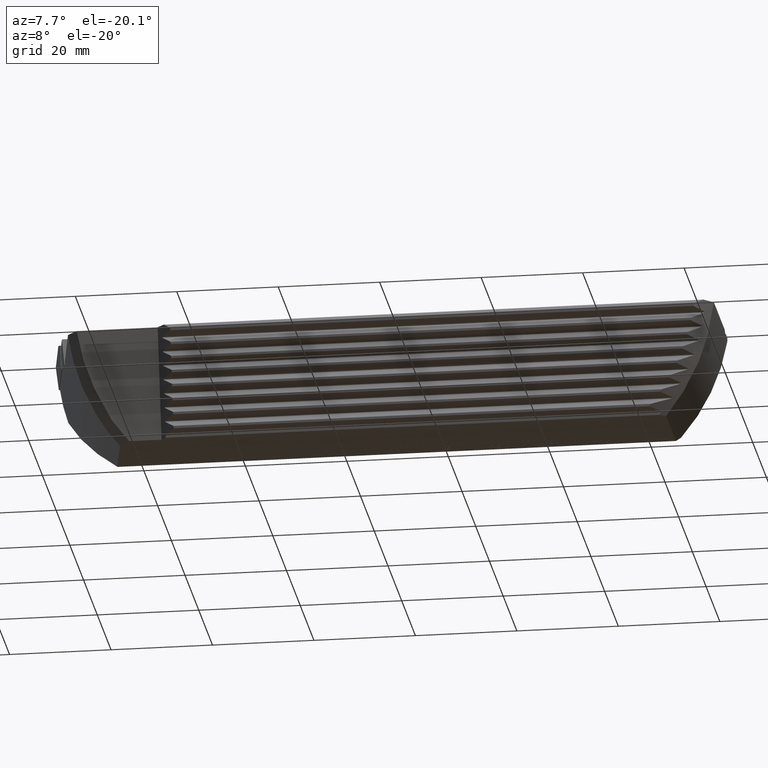
[diagram: clean part render]
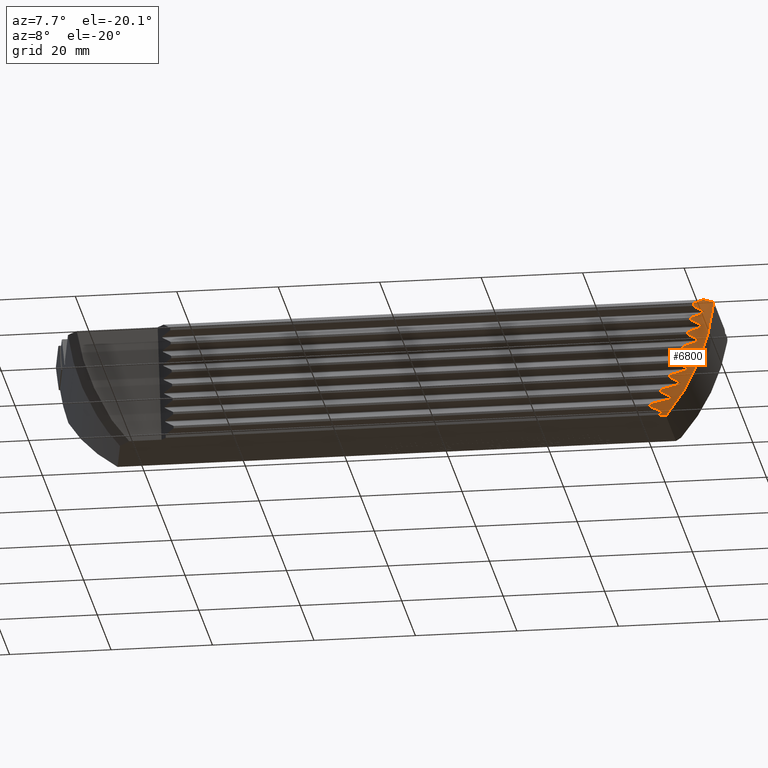
[diagram: same view with one face highlighted and labeled with its STEP entity id]
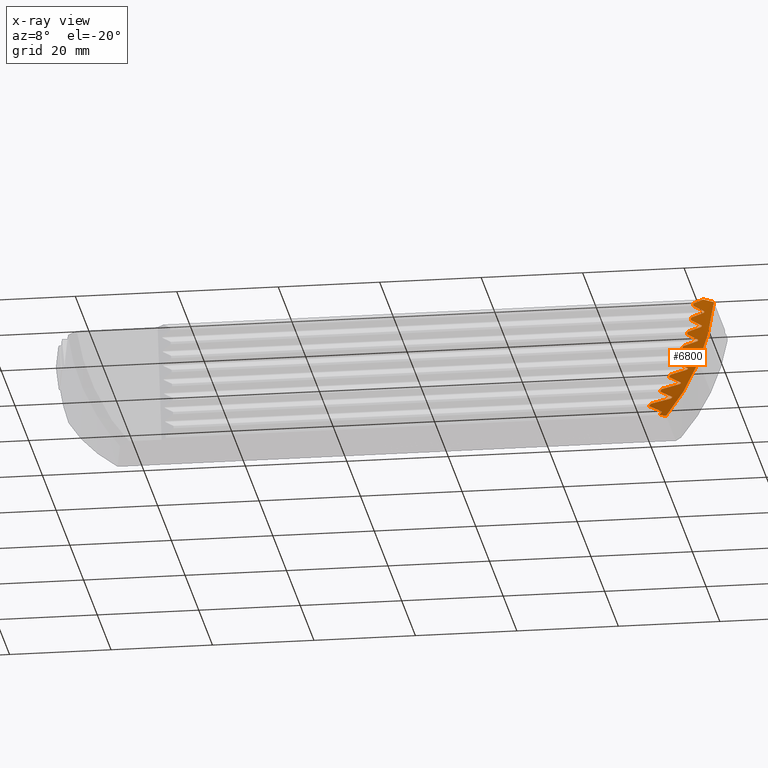
[diagram: x-ray of the same camera — body ghosted, the highlighted face saturated]
A machine part, auxiliary view. The second image highlights one B-rep face of the part: STEP entity #6800.
The next image is the same camera in x-ray: the body ghosted, the highlighted face saturated — about 0% of this face is hidden behind the body in this view.
In plain terms, the highlighted face is a freeform B-spline surface patch.
Its self-contained STEP definition (entity closure, byte-faithful):
#64 = CARTESIAN_POINT ( 'NONE',  ( 134.5845613844589600, -36.52633063262372600, -6.050000000000010500 ) ) ;
#85 = CARTESIAN_POINT ( 'NONE',  ( 123.7181557038277200, -32.36997885332834800, -26.75994528499704800 ) ) ;
#132 = CARTESIAN_POINT ( 'NONE',  ( 127.3528536518764000, -36.51400017045077100, -17.97214598813745900 ) ) ;
#153 = EDGE_CURVE ( 'NONE', #21198, #6716, #3176, .T. ) ;
#155 = CARTESIAN_POINT ( 'NONE',  ( 123.7083755843121900, -32.28194577921618000, -26.86967759691581400 ) ) ;
#201 = CARTESIAN_POINT ( 'NONE',  ( 130.4162673967142600, -36.91850911566623900, -13.20584658425452500 ) ) ;
#294 = VERTEX_POINT ( 'NONE', #5125 ) ;
#400 = B_SPLINE_CURVE_WITH_KNOTS ( 'NONE', 3,
 ( #8970, #18232, #10865, #24003, #12766, #1484, #14637 ),
 .UNSPECIFIED., .F., .F.,
 ( 4, 3, 4 ),
 ( 1.473698388019210200E-016, 0.001539430080052739700, 0.003079073643013428000 ),
 .UNSPECIFIED. ) ;
#516 = B_SPLINE_CURVE_WITH_KNOTS ( 'NONE', 3,
 ( #3006, #1136, #4908, #18048 ),
 .UNSPECIFIED., .F., .F.,
 ( 4, 4 ),
 ( 3.469446951953613800E-018, 0.0004713514177080084900 ),
 .UNSPECIFIED. ) ;
#669 = B_SPLINE_CURVE_WITH_KNOTS ( 'NONE', 3,
 ( #21458, #8318, #12117, #798, #13963, #2695, #15852, #4573, #17726, #6497 ),
 .UNSPECIFIED., .F., .F.,
 ( 4, 2, 2, 2, 4 ),
 ( 7.713182202459434400E-017, 0.0001286294055789615300, 0.0002572588111578459300, 0.0003858882167367303200, 0.0005145176223156146600 ),
 .UNSPECIFIED. ) ;
#798 = CARTESIAN_POINT ( 'NONE',  ( 131.4193370046849100, -35.85910563653977300, -13.54048896190810300 ) ) ;
#802 = ORIENTED_EDGE ( 'NONE', *, *, #14669, .T. ) ;
#973 = CARTESIAN_POINT ( 'NONE',  ( 127.6053454959335800, -33.84399299875708800, -21.42640834028320300 ) ) ;
#1115 = CARTESIAN_POINT ( 'NONE',  ( 127.4286870122205600, -36.55363693846737000, -17.82421955605167700 ) ) ;
#1126 = CARTESIAN_POINT ( 'NONE',  ( 127.6698540386168300, -33.77373074541698400, -21.45419453336743800 ) ) ;
#1136 = CARTESIAN_POINT ( 'NONE',  ( 130.3726356075839600, -38.64932962645990200, -10.00298796741317500 ) ) ;
#1165 = CARTESIAN_POINT ( 'NONE',  ( 128.4725434452416300, -37.14687104255191500, -15.61023973882562500 ) ) ;
#1183 = CARTESIAN_POINT ( 'NONE',  ( 127.3972567605948300, -33.75433545154027100, -21.76101486177834200 ) ) ;
#1204 = B_SPLINE_CURVE_WITH_KNOTS ( 'NONE', 3,
 ( #15381, #5916, #7896, #21032, #9783, #22930, #11683 ),
 .UNSPECIFIED., .F., .F.,
 ( 4, 3, 4 ),
 ( 0.0000000000000000000, 0.001251856041963073800, 0.002824493595006482000 ),
 .UNSPECIFIED. ) ;
#1234 = CARTESIAN_POINT ( 'NONE',  ( 123.5585613317595200, -32.23681908278501100, -27.03809272077465000 ) ) ;
#1343 = VERTEX_POINT ( 'NONE', #14343 ) ;
#1374 = EDGE_CURVE ( 'NONE', #1994, #6765, #2128, .T. ) ;
#1399 = CARTESIAN_POINT ( 'NONE',  ( 123.2738797807059700, -32.15321922793429400, -27.35006530447994100 ) ) ;
#1413 = CARTESIAN_POINT ( 'NONE',  ( 130.3272320349981600, -35.12254174553696400, -16.35342474522967700 ) ) ;
#1417 = CARTESIAN_POINT ( 'NONE',  ( 128.6600270858250500, -37.26538931249933000, -15.16792353375673700 ) ) ;
#1452 = CARTESIAN_POINT ( 'NONE',  ( 132.7790819290612800, -37.25049742895151200, -8.338536578598743500 ) ) ;
#1484 = CARTESIAN_POINT ( 'NONE',  ( 130.0489563370474300, -37.75122944670067700, -12.28571527163119700 ) ) ;
#1578 = CARTESIAN_POINT ( 'NONE',  ( 125.8339794678011700, -33.11554116961394800, -24.08717896808923000 ) ) ;
#1615 = CARTESIAN_POINT ( 'NONE',  ( 134.2525220027648300, -35.97098713624138400, -8.335868042271283000 ) ) ;
#1617 = CARTESIAN_POINT ( 'NONE',  ( 123.2568247514634100, -32.78034763106064300, -26.64257635451485800 ) ) ;
#1667 = CARTESIAN_POINT ( 'NONE',  ( 125.8315476560978300, -32.98465336472146700, -24.25253803907591200 ) ) ;
#1685 = CARTESIAN_POINT ( 'NONE',  ( 132.1547202145120500, -36.54452231941313300, -11.03502958161826800 ) ) ;
#1704 = CARTESIAN_POINT ( 'NONE',  ( 131.1507457895796400, -33.76600261725589300, -17.42086098744378500 ) ) ;
#1855 = CARTESIAN_POINT ( 'NONE',  ( 131.5127975775552300, -37.31698046747462200, -10.63349395886837500 ) ) ;
#1858 = CARTESIAN_POINT ( 'NONE',  ( 130.0222610951811400, -35.58054831313528200, -16.02993464925929600 ) ) ;
#1963 = CARTESIAN_POINT ( 'NONE',  ( 123.7303773359907100, -32.34929166453034800, -26.77444924734566500 ) ) ;
#1994 = VERTEX_POINT ( 'NONE', #13843 ) ;
#2105 = CARTESIAN_POINT ( 'NONE',  ( 131.0282745949526500, -36.29220131511037600, -13.37366525362675600 ) ) ;
#2128 = B_SPLINE_CURVE_WITH_KNOTS ( 'NONE', 3,
 ( #13137, #14104, #13229, #12487 ),
 .UNSPECIFIED., .F., .F.,
 ( 4, 4 ),
 ( 0.0000000000000000000, 0.0005364988236323490100 ),
 .UNSPECIFIED. ) ;
#2182 = CARTESIAN_POINT ( 'NONE',  ( 127.4286870122205600, -36.55363693846737000, -17.82421955605167700 ) ) ;
#2199 = EDGE_CURVE ( 'NONE', #14117, #7551, #18475, .T. ) ;
#2288 = B_SPLINE_CURVE_WITH_KNOTS ( 'NONE', 3,
 ( #18018, #4973, #20027, #8766 ),
 .UNSPECIFIED., .F., .F.,
 ( 4, 4 ),
 ( 2.943923360032078000E-017, 0.003575567828514641900 ),
 .UNSPECIFIED. ) ;
#2333 = CARTESIAN_POINT ( 'NONE',  ( 123.8821682403357900, -35.05089729063077200, -23.43252027232594900 ) ) ;
#2558 = B_SPLINE_CURVE_WITH_KNOTS ( 'NONE', 3,
 ( #10554, #8918, #12715, #1417 ),
 .UNSPECIFIED., .F., .F.,
 ( 4, 4 ),
 ( 4.580327021671401200E-016, 0.003215846030035622900 ),
 .UNSPECIFIED. ) ;
#2562 = ORIENTED_EDGE ( 'NONE', *, *, #153, .T. ) ;
#2591 = ORIENTED_EDGE ( 'NONE', *, *, #23472, .T. ) ;
#2669 = VERTEX_POINT ( 'NONE', #22781 ) ;
#2695 = CARTESIAN_POINT ( 'NONE',  ( 131.3778215257751500, -35.82745752762043200, -13.66090583954710700 ) ) ;
#2707 = B_SPLINE_CURVE_WITH_KNOTS ( 'NONE', 3,
 ( #18518, #1578, #20416, #9177, #22313, #11046, #24211, #12957, #1667, #14833, #3574, #16719, #5453, #18604 ),
 .UNSPECIFIED., .F., .F.,
 ( 4, 2, 2, 2, 2, 2, 4 ),
 ( 0.0000000000000000000, 7.451216942838094600E-005, 0.0001490243388567618900, 0.0002235365082851428300, 0.0002980486777135237900, 0.0004470730165702780600, 0.0005960973554270323900 ),
 .UNSPECIFIED. ) ;
#2913 = B_SPLINE_CURVE_WITH_KNOTS ( 'NONE', 3,
 ( #22504, #9354, #11255, #24398, #13142, #1858, #15039 ),
 .UNSPECIFIED., .F., .F.,
 ( 4, 3, 4 ),
 ( 0.0000000000000000000, 0.001345811380157438200, 0.002691623273841657400 ),
 .UNSPECIFIED. ) ;
#3001 = CARTESIAN_POINT ( 'NONE',  ( 127.6723657281773400, -33.71575278833810100, -21.52976358009700400 ) ) ;
#3006 = CARTESIAN_POINT ( 'NONE',  ( 130.4089400897823300, -38.68889406056322100, -9.855331489166868400 ) ) ;
#3012 = CARTESIAN_POINT ( 'NONE',  ( 131.1583596961542900, -38.23442250747633900, -9.400859936079967800 ) ) ;
#3020 = B_SPLINE_CURVE_WITH_KNOTS ( 'NONE', 3,
 ( #20596, #7450, #11235, #24370 ),
 .UNSPECIFIED., .F., .F.,
 ( 4, 4 ),
 ( 0.0000000000000000000, 0.2640935629766421600 ),
 .UNSPECIFIED. ) ;
#3043 = CARTESIAN_POINT ( 'NONE',  ( 131.5304897890244400, -38.00508252320455700, -9.171519951808189600 ) ) ;
#3097 = CARTESIAN_POINT ( 'NONE',  ( 131.9025799896393800, -37.77576712412316300, -8.942204552726792600 ) ) ;
#3176 = B_SPLINE_CURVE_WITH_KNOTS ( 'NONE', 3,
 ( #16964, #16546, #7367, #17046, #17129, #18076, #18415 ),
 .UNSPECIFIED., .F., .F.,
 ( 4, 3, 4 ),
 ( 7.757919228897728500E-018, 0.001359683258879645100, 0.002719366518071261200 ),
 .UNSPECIFIED. ) ;
#3194 = EDGE_CURVE ( 'NONE', #3784, #7715, #5415, .T. ) ;
#3196 = ORIENTED_EDGE ( 'NONE', *, *, #17092, .T. ) ;
#3226 = CARTESIAN_POINT ( 'NONE',  ( 121.6304243306541900, -34.33906518055502500, -26.08911387358756100 ) ) ;
#3248 = B_SPLINE_CURVE_WITH_KNOTS ( 'NONE', 3,
 ( #20705, #9464, #11338, #64 ),
 .UNSPECIFIED., .F., .F.,
 ( 4, 4 ),
 ( 0.4884491327493285000, 1.000000000000000000 ),
 .UNSPECIFIED. ) ;
#3256 = CARTESIAN_POINT ( 'NONE',  ( 121.4920538187345200, -34.29986154642412500, -26.23542382800538100 ) ) ;
#3272 = CARTESIAN_POINT ( 'NONE',  ( 132.2729819526199200, -37.54507555559165200, -8.711512984195300300 ) ) ;
#3289 = CARTESIAN_POINT ( 'NONE',  ( 130.2259608627024900, -35.15943296180119400, -16.43001557939325300 ) ) ;
#3327 = CARTESIAN_POINT ( 'NONE',  ( 132.7030228285475200, -37.27695913132740200, -8.435501746203256000 ) ) ;
#3471 = ORIENTED_EDGE ( 'NONE', *, *, #8841, .T. ) ;
#3548 = CARTESIAN_POINT ( 'NONE',  ( 130.3324364190695200, -35.26749774682097200, -16.11381629569332900 ) ) ;
#3574 = CARTESIAN_POINT ( 'NONE',  ( 125.7360535873885700, -32.99008734926875500, -24.33146043989424700 ) ) ;
#3575 = CARTESIAN_POINT ( 'NONE',  ( 129.1590176308338300, -34.48838001099943500, -18.79654616835302100 ) ) ;
#3591 = CARTESIAN_POINT ( 'NONE',  ( 132.0661798740925400, -36.58215686719366000, -11.11664269212500300 ) ) ;
#3606 = CARTESIAN_POINT ( 'NONE',  ( 131.1366773127857100, -33.75880117327566400, -17.45052756896337700 ) ) ;
#3746 = ORIENTED_EDGE ( 'NONE', *, *, #5255, .F. ) ;
#3753 = CARTESIAN_POINT ( 'NONE',  ( 132.1213834201097700, -36.69100249488487700, -10.80122425110345600 ) ) ;
#3784 = VERTEX_POINT ( 'NONE', #19565 ) ;
#3877 = CARTESIAN_POINT ( 'NONE',  ( 123.7369102801178100, -32.33329449019521500, -26.78793691787083700 ) ) ;
#4132 = CARTESIAN_POINT ( 'NONE',  ( 134.5845613844589600, -36.52633063262372600, -6.050000000000010500 ) ) ;
#4133 = B_SPLINE_CURVE_WITH_KNOTS ( 'NONE', 3,
 ( #2182, #132, #17217, #5972 ),
 .UNSPECIFIED., .F., .F.,
 ( 4, 4 ),
 ( 3.469446951953614200E-018, 0.0005126753466529232500 ),
 .UNSPECIFIED. ) ;
#4333 = VERTEX_POINT ( 'NONE', #11695 ) ;
#4380 = ORIENTED_EDGE ( 'NONE', *, *, #12841, .T. ) ;
#4573 = CARTESIAN_POINT ( 'NONE',  ( 131.2878218207022800, -35.85497715087409900, -13.75025260886267900 ) ) ;
#4583 = CARTESIAN_POINT ( 'NONE',  ( 134.0113580357771100, -34.64368186642994400, -13.80400648461926500 ) ) ;
#4726 = CARTESIAN_POINT ( 'NONE',  ( 129.4989749493311700, -37.85862341658386000, -12.95394371653068600 ) ) ;
#4766 = EDGE_CURVE ( 'NONE', #10516, #16735, #23573, .T. ) ;
#4893 = CARTESIAN_POINT ( 'NONE',  ( 127.6386059694877600, -33.69720536862587300, -21.58967199274684000 ) ) ;
#4900 = CARTESIAN_POINT ( 'NONE',  ( 131.4874110577771400, -38.65520709743596200, -7.809334665618260700 ) ) ;
#4908 = CARTESIAN_POINT ( 'NONE',  ( 130.3353927071153700, -38.60982209163624600, -10.15043209465689200 ) ) ;
#4973 = CARTESIAN_POINT ( 'NONE',  ( 127.9361201697033700, -34.93678105643315500, -19.57541207034434500 ) ) ;
#5042 = CARTESIAN_POINT ( 'NONE',  ( 132.6417561652575000, -37.31309732170002000, -8.479534750303646000 ) ) ;
#5109 = CARTESIAN_POINT ( 'NONE',  ( 130.3631638341086600, -35.23648549684961000, -16.12212600302863700 ) ) ;
#5125 = CARTESIAN_POINT ( 'NONE',  ( 123.2738797807059700, -32.15321922793429400, -27.35006530447994100 ) ) ;
#5209 = VERTEX_POINT ( 'NONE', #24075 ) ;
#5240 = CARTESIAN_POINT ( 'NONE',  ( 132.6417561652575000, -37.31309732170002000, -8.479534750303646000 ) ) ;
#5255 = EDGE_CURVE ( 'NONE', #21095, #6110, #8299, .T. ) ;
#5409 = CARTESIAN_POINT ( 'NONE',  ( 132.8456802418753900, -34.76998859690263500, -13.28842482466799000 ) ) ;
#5415 = B_SPLINE_CURVE_WITH_KNOTS ( 'NONE', 3,
 ( #5042, #3272, #3097, #3043, #3012, #7173, #7144 ),
 .UNSPECIFIED., .F., .F.,
 ( 4, 3, 4 ),
 ( 6.798699777552591100E-017, 0.001480743055748873000, 0.002961646335701721700 ),
 .UNSPECIFIED. ) ;
#5453 = CARTESIAN_POINT ( 'NONE',  ( 125.6100257709682800, -33.02539162929507900, -24.40011943586001300 ) ) ;
#5455 = CARTESIAN_POINT ( 'NONE',  ( 129.1707926182478200, -34.43097589268052200, -18.86678301269310200 ) ) ;
#5485 = CARTESIAN_POINT ( 'NONE',  ( 130.2063866821417000, -33.28339940813801000, -19.40902259457481100 ) ) ;
#5507 = ORIENTED_EDGE ( 'NONE', *, *, #16611, .T. ) ;
#5529 = ORIENTED_EDGE ( 'NONE', *, *, #2199, .T. ) ;
#5565 = CARTESIAN_POINT ( 'NONE',  ( 130.6008788509413700, -38.25681588863477600, -10.38166581675034400 ) ) ;
#5599 = VERTEX_POINT ( 'NONE', #12400 ) ;
#5609 = EDGE_CURVE ( 'NONE', #13286, #2669, #9125, .T. ) ;
#5682 = CARTESIAN_POINT ( 'NONE',  ( 123.6843885526913300, -32.40771354742189900, -26.74242335629817200 ) ) ;
#5704 = CARTESIAN_POINT ( 'NONE',  ( 132.2435396070933400, -38.56180046460727300, -6.360189496884001600 ) ) ;
#5752 = CARTESIAN_POINT ( 'NONE',  ( 123.7385720074433800, -32.31852985006233300, -26.80378321826638600 ) ) ;
#5768 = B_SPLINE_CURVE_WITH_KNOTS ( 'NONE', 3,
 ( #11048, #12958, #3575, #16721, #5455, #18605, #7368, #20490, #9249, #22399, #11145, #24278 ),
 .UNSPECIFIED., .F., .F.,
 ( 4, 2, 2, 2, 2, 4 ),
 ( 7.757919228897728500E-018, 0.0001363555606667038200, 0.0002045333410000468500, 0.0002727111213333898700, 0.0004090666820001152100, 0.0005454222426668406700 ),
 .UNSPECIFIED. ) ;
#5769 = CARTESIAN_POINT ( 'NONE',  ( 123.6988180938983200, -32.27906689445589400, -26.88042174111040300 ) ) ;
#5798 = CARTESIAN_POINT ( 'NONE',  ( 129.4989749493311700, -37.85862341658386000, -12.95394371653068600 ) ) ;
#5916 = CARTESIAN_POINT ( 'NONE',  ( 124.0716674117306700, -34.73474027152623500, -23.65331587634664200 ) ) ;
#5950 = CARTESIAN_POINT ( 'NONE',  ( 124.1062099379362000, -35.13013219040348600, -23.13681160064154700 ) ) ;
#5954 = CARTESIAN_POINT ( 'NONE',  ( 129.5493671119850500, -37.89804939556220400, -12.80680395984532400 ) ) ;
#5972 = CARTESIAN_POINT ( 'NONE',  ( 127.1981532717663400, -36.43511866851996900, -18.26653576112056100 ) ) ;
#5973 = CARTESIAN_POINT ( 'NONE',  ( 130.4089400897823300, -38.68889406056322100, -9.855331489166868400 ) ) ;
#6110 = VERTEX_POINT ( 'NONE', #23907 ) ;
#6364 = EDGE_CURVE ( 'NONE', #10822, #21095, #3248, .T. ) ;
#6497 = CARTESIAN_POINT ( 'NONE',  ( 131.2204077600326600, -35.88959257363612200, -13.79212679489352700 ) ) ;
#6505 = CARTESIAN_POINT ( 'NONE',  ( 121.6680779998381800, -30.68391424771867200, -30.11297730510233700 ) ) ;
#6716 = VERTEX_POINT ( 'NONE', #16722 ) ;
#6765 = VERTEX_POINT ( 'NONE', #20492 ) ;
#6800 = ADVANCED_FACE ( 'NONE', ( #24162 ), #10847, .T. ) ;
#6815 = CARTESIAN_POINT ( 'NONE',  ( 127.5536540390315400, -33.70090553070743800, -21.67229033142853100 ) ) ;
#6817 = CARTESIAN_POINT ( 'NONE',  ( 132.0955568688864900, -38.02875636192381800, -7.977191634296614700 ) ) ;
#6961 = EDGE_CURVE ( 'NONE', #17890, #4333, #400, .T. ) ;
#7074 = VERTEX_POINT ( 'NONE', #3548 ) ;
#7144 = CARTESIAN_POINT ( 'NONE',  ( 130.4089400897823300, -38.68889406056322100, -9.855331489166868400 ) ) ;
#7173 = CARTESIAN_POINT ( 'NONE',  ( 130.7845308418541200, -38.46239235002974500, -9.628829778633367200 ) ) ;
#7234 = CARTESIAN_POINT ( 'NONE',  ( 121.8046868231203300, -34.03289466957645700, -26.30695738706256700 ) ) ;
#7314 = CARTESIAN_POINT ( 'NONE',  ( 132.0140299999744100, -34.23958940215251800, -15.47143734519598400 ) ) ;
#7367 = CARTESIAN_POINT ( 'NONE',  ( 127.8314344184575900, -35.80866786782064500, -18.43439274726576500 ) ) ;
#7368 = CARTESIAN_POINT ( 'NONE',  ( 129.1457565977063400, -34.40994385717333900, -18.92718251963152200 ) ) ;
#7407 = CARTESIAN_POINT ( 'NONE',  ( 126.9096958100353000, -32.04625707280921900, -24.50227531424166500 ) ) ;
#7450 = CARTESIAN_POINT ( 'NONE',  ( 124.0686079176942100, -31.62754228815064300, -27.35000000000000900 ) ) ;
#7551 = VERTEX_POINT ( 'NONE', #1115 ) ;
#7589 = CARTESIAN_POINT ( 'NONE',  ( 123.6697307397589000, -32.42048825069318200, -26.73900038487309100 ) ) ;
#7590 = VERTEX_POINT ( 'NONE', #12806 ) ;
#7625 = CARTESIAN_POINT ( 'NONE',  ( 131.6593490953067100, -38.94546592997095000, -6.743854962247682200 ) ) ;
#7656 = CARTESIAN_POINT ( 'NONE',  ( 125.5667247526050800, -33.04258307750831800, -24.41731088407328400 ) ) ;
#7684 = CARTESIAN_POINT ( 'NONE',  ( 123.7350163188846200, -32.30576077030588100, -26.82136745344878300 ) ) ;
#7715 = VERTEX_POINT ( 'NONE', #5973 ) ;
#7832 = B_SPLINE_CURVE_WITH_KNOTS ( 'NONE', 3,
 ( #20432, #12890, #22337, #11064, #24225, #12979, #1685, #14853, #3591, #16743 ),
 .UNSPECIFIED., .F., .F.,
 ( 4, 2, 2, 2, 4 ),
 ( 0.0000000000000000000, 0.0001259252439738793100, 0.0002518504879477586100, 0.0003777757319216378900, 0.0005037009758955172200 ),
 .UNSPECIFIED. ) ;
#7864 = EDGE_CURVE ( 'NONE', #18343, #19659, #18664, .T. ) ;
#7891 = ORIENTED_EDGE ( 'NONE', *, *, #21197, .T. ) ;
#7896 = CARTESIAN_POINT ( 'NONE',  ( 124.3745601293145700, -34.45749503552963200, -23.72760351343730900 ) ) ;
#7953 = B_SPLINE_CURVE_WITH_KNOTS ( 'NONE', 3,
 ( #23766, #1234, #12694, #1399 ),
 .UNSPECIFIED., .F., .F.,
 ( 4, 4 ),
 ( 0.0000000000000000000, 0.0006456413653912300400 ),
 .UNSPECIFIED. ) ;
#7957 = CARTESIAN_POINT ( 'NONE',  ( 123.9947725460212500, -35.09040598329722400, -23.28507182395406600 ) ) ;
#8182 = ORIENTED_EDGE ( 'NONE', *, *, #15304, .T. ) ;
#8299 = B_SPLINE_CURVE_WITH_KNOTS ( 'NONE', 3,
 ( #16664, #1615, #11006, #5409, #18560, #7314, #20446, #9210, #22352, #11082, #24240, #13000, #1704, #14866, #3606, #16763, #5485, #18640, #7407, #20538, #9284 ),
 .UNSPECIFIED., .F., .F.,
 ( 4, 2, 2, 2, 1, 1, 1, 1, 1, 2, 2, 2, 4 ),
 ( 0.0000000000000000000, 0.2499999999999321700, 0.3749999999998977500, 0.4374999999998805400, 0.4687499999998716000, 0.4843749999998664400, 0.4921874999998638900, 0.4960937499998632200, 0.4980468749998628900, 0.4990234374998632200, 0.4999999999998635500, 0.7499999999999317200, 1.000000000000000000 ),
 .UNSPECIFIED. ) ;
#8318 = CARTESIAN_POINT ( 'NONE',  ( 131.3642539326893100, -35.94884305350514400, -13.46566782253843200 ) ) ;
#8325 = CARTESIAN_POINT ( 'NONE',  ( 125.6456059548621100, -35.72336629448802400, -20.92283178341549600 ) ) ;
#8391 = CARTESIAN_POINT ( 'NONE',  ( 130.3493767105125300, -37.92629581584932900, -13.41596429436141900 ) ) ;
#8501 = ORIENTED_EDGE ( 'NONE', *, *, #17789, .T. ) ;
#8529 = CARTESIAN_POINT ( 'NONE',  ( 128.6600270858250500, -37.26538931249933000, -15.16792353375673700 ) ) ;
#8697 = CARTESIAN_POINT ( 'NONE',  ( 127.4375429931866300, -33.73672126454646000, -21.74340067478451400 ) ) ;
#8701 = CARTESIAN_POINT ( 'NONE',  ( 132.7041991415425200, -37.40275486891680900, -8.144928228808519000 ) ) ;
#8728 = VERTEX_POINT ( 'NONE', #22342 ) ;
#8766 = CARTESIAN_POINT ( 'NONE',  ( 125.9251426826475900, -35.84188456443543200, -20.48051557834660800 ) ) ;
#8840 = CARTESIAN_POINT ( 'NONE',  ( 121.7675119325199400, -34.37857470621898400, -25.94166231642668300 ) ) ;
#8841 = EDGE_CURVE ( 'NONE', #18162, #7074, #2913, .T. ) ;
#8914 = CARTESIAN_POINT ( 'NONE',  ( 130.4085555152954300, -35.15880210948367300, -16.18571920107359900 ) ) ;
#8915 = EDGE_CURVE ( 'NONE', #15244, #13286, #9228, .T. ) ;
#8918 = CARTESIAN_POINT ( 'NONE',  ( 130.3755181714358000, -36.35611341106238100, -14.25864763231979300 ) ) ;
#8950 = CARTESIAN_POINT ( 'NONE',  ( 132.7041991415425200, -37.40275486891680900, -8.144928228808519000 ) ) ;
#8970 = CARTESIAN_POINT ( 'NONE',  ( 132.0336756273830200, -36.60134494766806100, -11.13583077259857900 ) ) ;
#9086 = CARTESIAN_POINT ( 'NONE',  ( 127.3972567605948300, -33.75433545154027100, -21.76101486177834200 ) ) ;
#9125 = B_SPLINE_CURVE_WITH_KNOTS ( 'NONE', 3,
 ( #21986, #8840, #3226, #16381 ),
 .UNSPECIFIED., .F., .F.,
 ( 4, 4 ),
 ( 1.962615573354719000E-017, 0.0006154748868455917200 ),
 .UNSPECIFIED. ) ;
#9177 = CARTESIAN_POINT ( 'NONE',  ( 125.8763231698936700, -33.06145793283352700, -24.11639490036942100 ) ) ;
#9210 = CARTESIAN_POINT ( 'NONE',  ( 131.5774579009668100, -33.99191482350725800, -16.49067257567850200 ) ) ;
#9228 = B_SPLINE_CURVE_WITH_KNOTS ( 'NONE', 3,
 ( #20863, #18958, #20946, #9684 ),
 .UNSPECIFIED., .F., .F.,
 ( 4, 4 ),
 ( 3.044427344733910700E-017, 0.004148364574374885200 ),
 .UNSPECIFIED. ) ;
#9249 = CARTESIAN_POINT ( 'NONE',  ( 129.0709613650926700, -34.41166624864978700, -19.01278024383703200 ) ) ;
#9284 = CARTESIAN_POINT ( 'NONE',  ( 124.4668881967540000, -31.35475658255423800, -27.35000000000000500 ) ) ;
#9318 = EDGE_CURVE ( 'NONE', #7074, #14117, #18024, .T. ) ;
#9354 = CARTESIAN_POINT ( 'NONE',  ( 128.7823207446746800, -36.83345320884552600, -15.69421979426075700 ) ) ;
#9429 = CARTESIAN_POINT ( 'NONE',  ( 132.4778610868158400, -38.40695072040568200, -6.205339752682436800 ) ) ;
#9464 = CARTESIAN_POINT ( 'NONE',  ( 133.3386018168913000, -37.67683793528015500, -6.050000000000010500 ) ) ;
#9512 = CARTESIAN_POINT ( 'NONE',  ( 130.9564092936612700, -39.40064643459517400, -7.199035466871922800 ) ) ;
#9553 = CARTESIAN_POINT ( 'NONE',  ( 123.7286924645085400, -32.29545111952907600, -26.83824456747636600 ) ) ;
#9569 = B_SPLINE_CURVE_WITH_KNOTS ( 'NONE', 3,
 ( #8950, #18285, #10838, #23984, #12750, #1452, #14608, #3327, #16509, #5240 ),
 .UNSPECIFIED., .F., .F.,
 ( 4, 2, 2, 2, 4 ),
 ( 7.757919228897728500E-018, 0.0001238029232176886100, 0.0002476058464353694700, 0.0003714087696530503200, 0.0004952116928707312300 ),
 .UNSPECIFIED. ) ;
#9596 = CARTESIAN_POINT ( 'NONE',  ( 129.8045735104098200, -37.54510131471004500, -13.03795171053707800 ) ) ;
#9684 = CARTESIAN_POINT ( 'NONE',  ( 121.9032947830847300, -34.41837981637154100, -25.79310762293648200 ) ) ;
#9783 = CARTESIAN_POINT ( 'NONE',  ( 125.0572111537194500, -33.83120140266243000, -23.89541838658883000 ) ) ;
#10196 = EDGE_CURVE ( 'NONE', #5599, #1994, #2288, .T. ) ;
#10205 = CARTESIAN_POINT ( 'NONE',  ( 125.9725701158789000, -35.41046968663559400, -21.00667217680398800 ) ) ;
#10262 = EDGE_CURVE ( 'NONE', #21314, #17890, #7832, .T. ) ;
#10278 = CARTESIAN_POINT ( 'NONE',  ( 119.1647556718498900, -33.96652819713805400, -28.19401823355773100 ) ) ;
#10360 = CARTESIAN_POINT ( 'NONE',  ( 126.6259703789305900, -34.78416191409173300, -21.17449083867045100 ) ) ;
#10372 = CARTESIAN_POINT ( 'NONE',  ( 131.2204077600326600, -35.88959257363612200, -13.79212679489352700 ) ) ;
#10391 = CARTESIAN_POINT ( 'NONE',  ( 128.5360070494051300, -37.18627351241711700, -15.46318771934492600 ) ) ;
#10516 = VERTEX_POINT ( 'NONE', #18671 ) ;
#10554 = CARTESIAN_POINT ( 'NONE',  ( 131.2204077600326600, -35.88959257363612200, -13.79212679489352700 ) ) ;
#10567 = CARTESIAN_POINT ( 'NONE',  ( 126.3132306421334300, -34.22829981922416900, -22.23497922946222600 ) ) ;
#10757 = CARTESIAN_POINT ( 'NONE',  ( 127.6053454959335800, -33.84399299875708800, -21.42640834028320300 ) ) ;
#10792 = CARTESIAN_POINT ( 'NONE',  ( 130.4016688546156500, -35.12803698700955100, -16.24447360767532800 ) ) ;
#10822 = VERTEX_POINT ( 'NONE', #12100 ) ;
#10838 = CARTESIAN_POINT ( 'NONE',  ( 132.7589430455406900, -37.34310815881982400, -8.167799875351036600 ) ) ;
#10841 = CARTESIAN_POINT ( 'NONE',  ( 127.1981532717663400, -36.43511866851996900, -18.26653576112056100 ) ) ;
#10847 = B_SPLINE_SURFACE_WITH_KNOTS ( 'NONE', 1, 3, ( 
 ( #15863, #4583, #17734, #6505 ),
 ( #19646, #8391, #21550, #10278 ) ),
 .UNSPECIFIED., .F., .F., .F.,
 ( 2, 2 ),
 ( 4, 4 ),
 ( 0.0000000000000000000, 1.000000000000000000 ),
 ( 4.799301541785856000, 5.553410312396766600 ),
 .UNSPECIFIED. ) ;
#10865 = CARTESIAN_POINT ( 'NONE',  ( 131.2440012403855300, -37.06486700659525700, -11.59935283152579400 ) ) ;
#11006 = CARTESIAN_POINT ( 'NONE',  ( 133.7460797291522600, -35.46254769053818000, -10.43509127770757400 ) ) ;
#11010 = CARTESIAN_POINT ( 'NONE',  ( 122.1166503724254500, -33.76519487398646600, -26.37868733110488500 ) ) ;
#11046 = CARTESIAN_POINT ( 'NONE',  ( 125.8841660224314600, -33.01149399249348400, -24.17166455024721100 ) ) ;
#11048 = CARTESIAN_POINT ( 'NONE',  ( 129.0979745596463000, -34.55574537278903300, -18.77011231798826100 ) ) ;
#11064 = CARTESIAN_POINT ( 'NONE',  ( 132.2085956260858100, -36.57416145965900300, -10.87989067055484500 ) ) ;
#11082 = CARTESIAN_POINT ( 'NONE',  ( 131.2882811344088600, -33.83711486962680900, -17.12796350705047700 ) ) ;
#11127 = B_SPLINE_CURVE_WITH_KNOTS ( 'NONE', 3,
 ( #8529, #19775, #10391, #23568 ),
 .UNSPECIFIED., .F., .F.,
 ( 4, 4 ),
 ( 1.868354362588067700E-017, 0.0004948134204569560200 ),
 .UNSPECIFIED. ) ;
#11145 = CARTESIAN_POINT ( 'NONE',  ( 128.9626575511978800, -34.44807167805279800, -19.08670269196397800 ) ) ;
#11215 = CARTESIAN_POINT ( 'NONE',  ( 130.9318034740840100, -39.36110059433643500, -7.346622551945434200 ) ) ;
#11235 = CARTESIAN_POINT ( 'NONE',  ( 123.6689317700614200, -31.89325409179003800, -27.35000000000000900 ) ) ;
#11255 = CARTESIAN_POINT ( 'NONE',  ( 129.0922065619665800, -36.52013541965644800, -15.77817304284825900 ) ) ;
#11338 = CARTESIAN_POINT ( 'NONE',  ( 133.9642294034833000, -37.10157051131893300, -6.050000000000010500 ) ) ;
#11360 = CARTESIAN_POINT ( 'NONE',  ( 123.7099416719276100, -32.37995757458822500, -26.75475463958986600 ) ) ;
#11435 = ORIENTED_EDGE ( 'NONE', *, *, #13042, .T. ) ;
#11455 = CARTESIAN_POINT ( 'NONE',  ( 123.7171036654893900, -32.28597079395621700, -26.85823915814423300 ) ) ;
#11504 = CARTESIAN_POINT ( 'NONE',  ( 130.1103422933479400, -37.23173394962606200, -13.12191824294562200 ) ) ;
#11580 = B_SPLINE_CURVE_WITH_KNOTS ( 'NONE', 3,
 ( #18715, #5565, #24396, #13139, #1855, #15036, #3753 ),
 .UNSPECIFIED., .F., .F.,
 ( 4, 3, 4 ),
 ( 0.0000000000000000000, 0.001333529923672567900, 0.002667061480891058000 ),
 .UNSPECIFIED. ) ;
#11683 = CARTESIAN_POINT ( 'NONE',  ( 125.8158770053418600, -33.13224062472512800, -24.08270436257814500 ) ) ;
#11695 = CARTESIAN_POINT ( 'NONE',  ( 129.6473149886902300, -37.97714168653126900, -12.51162751146179800 ) ) ;
#11729 = VERTEX_POINT ( 'NONE', #12128 ) ;
#11798 = ORIENTED_EDGE ( 'NONE', *, *, #22456, .T. ) ;
#11932 = B_SPLINE_CURVE_WITH_KNOTS ( 'NONE', 3,
 ( #14281, #12441, #4900, #18043, #6817, #19967, #8701 ),
 .UNSPECIFIED., .F., .F.,
 ( 4, 3, 4 ),
 ( 8.673617379884035500E-019, 0.001333614672403829800, 0.002667230817110922400 ),
 .UNSPECIFIED. ) ;
#12100 = CARTESIAN_POINT ( 'NONE',  ( 132.7125178989031700, -38.25160907895946800, -6.049998111940922700 ) ) ;
#12117 = CARTESIAN_POINT ( 'NONE',  ( 131.3910573377001500, -35.91671556734336000, -13.48148363927267600 ) ) ;
#12128 = CARTESIAN_POINT ( 'NONE',  ( 132.7041991415425200, -37.40275486891680900, -8.144928228808519000 ) ) ;
#12279 = CARTESIAN_POINT ( 'NONE',  ( 127.2790419044287900, -34.15753300012634200, -21.34239555012145600 ) ) ;
#12400 = CARTESIAN_POINT ( 'NONE',  ( 128.9248145104924700, -34.46608782557223100, -19.10471883948340000 ) ) ;
#12439 = CARTESIAN_POINT ( 'NONE',  ( 127.6391656891217800, -33.81149570576185000, -21.43511596369747700 ) ) ;
#12441 = CARTESIAN_POINT ( 'NONE',  ( 131.1835074588536000, -38.96858557802701000, -7.725365154818591800 ) ) ;
#12487 = CARTESIAN_POINT ( 'NONE',  ( 125.6456059548621100, -35.72336629448802400, -20.92283178341549600 ) ) ;
#12694 = CARTESIAN_POINT ( 'NONE',  ( 123.4169294745543100, -32.19487445881942700, -27.19463218851859700 ) ) ;
#12711 = CARTESIAN_POINT ( 'NONE',  ( 130.3587009529609300, -35.11621883508696100, -16.32130404886508800 ) ) ;
#12715 = CARTESIAN_POINT ( 'NONE',  ( 129.5223172045063800, -36.81506634329721100, -14.71760056455461200 ) ) ;
#12749 = CARTESIAN_POINT ( 'NONE',  ( 123.6697307397589000, -32.42048825069318200, -26.73900038487309100 ) ) ;
#12750 = CARTESIAN_POINT ( 'NONE',  ( 132.7997209373052100, -37.26626167026394400, -8.259474038876060600 ) ) ;
#12766 = CARTESIAN_POINT ( 'NONE',  ( 130.4486060391238600, -37.52353659929968900, -12.05802242423022700 ) ) ;
#12806 = CARTESIAN_POINT ( 'NONE',  ( 123.7684114574735800, -35.01161392045607800, -23.57912780571043500 ) ) ;
#12841 = EDGE_CURVE ( 'NONE', #16735, #11729, #11932, .T. ) ;
#12890 = CARTESIAN_POINT ( 'NONE',  ( 132.1504342736205600, -36.66113665115787500, -10.80922677981138200 ) ) ;
#12904 = VERTEX_POINT ( 'NONE', #10757 ) ;
#12911 = CARTESIAN_POINT ( 'NONE',  ( 122.8429549511202600, -33.13917862756979100, -26.54642787878098900 ) ) ;
#12957 = CARTESIAN_POINT ( 'NONE',  ( 125.8485554852519800, -32.98732696848034600, -24.23390422072830600 ) ) ;
#12958 = CARTESIAN_POINT ( 'NONE',  ( 129.1300183585161100, -34.52404554048826700, -18.77860626245346900 ) ) ;
#12979 = CARTESIAN_POINT ( 'NONE',  ( 132.1809762593790700, -36.53891822520910900, -10.99965080905044300 ) ) ;
#13000 = CARTESIAN_POINT ( 'NONE',  ( 131.1704313592970800, -33.77610161048538400, -17.37925955498258200 ) ) ;
#13042 = EDGE_CURVE ( 'NONE', #7590, #8728, #1204, .T. ) ;
#13058 = CARTESIAN_POINT ( 'NONE',  ( 121.9032947830847300, -34.41837981637154100, -25.79310762293648200 ) ) ;
#13137 = CARTESIAN_POINT ( 'NONE',  ( 125.9251426826475900, -35.84188456443543200, -20.48051557834660800 ) ) ;
#13139 = CARTESIAN_POINT ( 'NONE',  ( 131.2087650921378700, -37.63020543910669600, -10.54956558067030100 ) ) ;
#13142 = CARTESIAN_POINT ( 'NONE',  ( 129.7121767176976400, -35.89368298226585800, -15.94603046754357400 ) ) ;
#13165 = CARTESIAN_POINT ( 'NONE',  ( 130.1901645842281400, -35.17784019960416900, -16.44842281718846200 ) ) ;
#13209 = ORIENTED_EDGE ( 'NONE', *, *, #7864, .T. ) ;
#13229 = CARTESIAN_POINT ( 'NONE',  ( 125.7398531655592000, -35.76270226327289200, -20.77602794934542300 ) ) ;
#13259 = CARTESIAN_POINT ( 'NONE',  ( 123.7253561397175800, -32.35953771459017500, -26.76646212997206200 ) ) ;
#13286 = VERTEX_POINT ( 'NONE', #13058 ) ;
#13340 = CARTESIAN_POINT ( 'NONE',  ( 123.6988180938983200, -32.27906689445589400, -26.88042174111040300 ) ) ;
#13376 = CARTESIAN_POINT ( 'NONE',  ( 130.7221927935461000, -36.60528398123848600, -13.28977500607356900 ) ) ;
#13843 = CARTESIAN_POINT ( 'NONE',  ( 125.9251426826475900, -35.84188456443543200, -20.48051557834660800 ) ) ;
#13963 = CARTESIAN_POINT ( 'NONE',  ( 131.4152361149960800, -35.83868962154642200, -13.58324717375815100 ) ) ;
#14102 = ORIENTED_EDGE ( 'NONE', *, *, #6364, .F. ) ;
#14104 = CARTESIAN_POINT ( 'NONE',  ( 125.8330356472048200, -35.80221045405688300, -20.62858137402445300 ) ) ;
#14117 = VERTEX_POINT ( 'NONE', #13165 ) ;
#14278 = CARTESIAN_POINT ( 'NONE',  ( 127.6772529365391800, -33.72778989478768400, -21.50846785092662100 ) ) ;
#14281 = CARTESIAN_POINT ( 'NONE',  ( 130.8797855238757700, -39.28212816464775200, -7.641351671940806300 ) ) ;
#14343 = CARTESIAN_POINT ( 'NONE',  ( 128.6600270858250500, -37.26538931249933000, -15.16792353375673700 ) ) ;
#14567 = CARTESIAN_POINT ( 'NONE',  ( 130.2609951772155600, -35.14404561875677000, -16.40776445257495600 ) ) ;
#14608 = CARTESIAN_POINT ( 'NONE',  ( 132.7556691533545200, -37.25550596335477100, -8.375607702417747500 ) ) ;
#14637 = CARTESIAN_POINT ( 'NONE',  ( 129.6473149886902300, -37.97714168653126900, -12.51162751146179800 ) ) ;
#14669 = EDGE_CURVE ( 'NONE', #16122, #1343, #2558, .T. ) ;
#14686 = ORIENTED_EDGE ( 'NONE', *, *, #23658, .T. ) ;
#14754 = EDGE_CURVE ( 'NONE', #8728, #15244, #2707, .T. ) ;
#14797 = CARTESIAN_POINT ( 'NONE',  ( 123.6697307397589000, -32.42048825069318200, -26.73900038487309100 ) ) ;
#14823 = EDGE_CURVE ( 'NONE', #6110, #294, #3020, .T. ) ;
#14833 = CARTESIAN_POINT ( 'NONE',  ( 125.7773548912917400, -32.98301814704792900, -24.30325877248515800 ) ) ;
#14853 = CARTESIAN_POINT ( 'NONE',  ( 132.0979054386841400, -36.56596050695732500, -11.09284917143222600 ) ) ;
#14866 = CARTESIAN_POINT ( 'NONE',  ( 131.1423052189583400, -33.76168089515394400, -17.43866437508570000 ) ) ;
#14937 = ORIENTED_EDGE ( 'NONE', *, *, #14823, .F. ) ;
#14964 = CARTESIAN_POINT ( 'NONE',  ( 132.1213834201097700, -36.69100249488487700, -10.80122425110345600 ) ) ;
#15016 = ORIENTED_EDGE ( 'NONE', *, *, #4766, .T. ) ;
#15023 = VERTEX_POINT ( 'NONE', #4726 ) ;
#15036 = CARTESIAN_POINT ( 'NONE',  ( 131.8170081409034800, -37.00391669273300000, -10.71737914448984300 ) ) ;
#15039 = CARTESIAN_POINT ( 'NONE',  ( 130.3324364190695200, -35.26749774682097200, -16.11381629569332900 ) ) ;
#15085 = B_SPLINE_CURVE_WITH_KNOTS ( 'NONE', 3,
 ( #8325, #10205, #21629, #10360, #23522, #12279, #973 ),
 .UNSPECIFIED., .F., .F.,
 ( 4, 3, 4 ),
 ( 0.0000000000000000000, 0.001380779327853125700, 0.002761560111515495800 ),
 .UNSPECIFIED. ) ;
#15140 = CARTESIAN_POINT ( 'NONE',  ( 123.7342862243650600, -32.34131534498749300, -26.78066703859460800 ) ) ;
#15244 = VERTEX_POINT ( 'NONE', #7656 ) ;
#15269 = CARTESIAN_POINT ( 'NONE',  ( 131.3345003269298000, -35.97925012085293200, -13.45752027339838900 ) ) ;
#15304 = EDGE_CURVE ( 'NONE', #7551, #21198, #4133, .T. ) ;
#15337 = CARTESIAN_POINT ( 'NONE',  ( 129.5988160166527300, -37.93755697780644500, -12.65935965562564800 ) ) ;
#15381 = CARTESIAN_POINT ( 'NONE',  ( 123.7684114574735800, -35.01161392045607800, -23.57912780571043500 ) ) ;
#15490 = CARTESIAN_POINT ( 'NONE',  ( 123.7684114574735800, -35.01161392045607800, -23.57912780571043500 ) ) ;
#15729 = EDGE_CURVE ( 'NONE', #6716, #5599, #5768, .T. ) ;
#15852 = CARTESIAN_POINT ( 'NONE',  ( 131.3491074877268800, -35.83352753166043700, -13.69426814262910200 ) ) ;
#15863 = CARTESIAN_POINT ( 'NONE',  ( 134.8490192091276800, -37.07939106843328900, -3.772127311976677200 ) ) ;
#16002 = EDGE_LOOP ( 'NONE', ( #14102, #11798, #15016, #4380, #3196, #22044, #14686, #8501, #17321, #20570, #19959, #22628, #2591, #802, #18468, #3471, #16097, #5529, #8182, #2562, #20219, #19616, #24048, #19356, #18780, #13209, #21402, #11435, #20836, #19060, #18440, #7891, #16690, #5507, #14937, #3746 ) ) ;
#16097 = ORIENTED_EDGE ( 'NONE', *, *, #9318, .T. ) ;
#16122 = VERTEX_POINT ( 'NONE', #10372 ) ;
#16179 = CARTESIAN_POINT ( 'NONE',  ( 127.6526717358884900, -33.70067560266522100, -21.57045913944602900 ) ) ;
#16230 = CARTESIAN_POINT ( 'NONE',  ( 125.2165614693331300, -34.68767816449781800, -22.69435757473586800 ) ) ;
#16381 = CARTESIAN_POINT ( 'NONE',  ( 121.4920538187345200, -34.29986154642412500, -26.23542382800538100 ) ) ;
#16462 = CARTESIAN_POINT ( 'NONE',  ( 130.1901645842281400, -35.17784019960416900, -16.44842281718846200 ) ) ;
#16509 = CARTESIAN_POINT ( 'NONE',  ( 132.6729013095980700, -37.29350539978443600, -8.459942828388385300 ) ) ;
#16546 = CARTESIAN_POINT ( 'NONE',  ( 127.5147951805382700, -36.12189452774406800, -18.35046391669139300 ) ) ;
#16611 = EDGE_CURVE ( 'NONE', #19031, #294, #7953, .T. ) ;
#16664 = CARTESIAN_POINT ( 'NONE',  ( 134.5845613844589600, -36.52633063262372600, -6.050000000000010500 ) ) ;
#16690 = ORIENTED_EDGE ( 'NONE', *, *, #22929, .T. ) ;
#16709 = VERTEX_POINT ( 'NONE', #20401 ) ;
#16719 = CARTESIAN_POINT ( 'NONE',  ( 125.6528951129256800, -33.01105186730438800, -24.37971328080412500 ) ) ;
#16721 = CARTESIAN_POINT ( 'NONE',  ( 129.1722549057665800, -34.44364040229339700, -18.84647940592416800 ) ) ;
#16722 = CARTESIAN_POINT ( 'NONE',  ( 129.0979745596463000, -34.55574537278903300, -18.77011231798826100 ) ) ;
#16735 = VERTEX_POINT ( 'NONE', #24194 ) ;
#16743 = CARTESIAN_POINT ( 'NONE',  ( 132.0336756273830200, -36.60134494766806100, -11.13583077259857900 ) ) ;
#16763 = CARTESIAN_POINT ( 'NONE',  ( 131.1346600802737900, -33.75776938826993500, -17.45477810264835800 ) ) ;
#16766 = CARTESIAN_POINT ( 'NONE',  ( 127.4286870122205600, -36.55363693846737000, -17.82421955605167700 ) ) ;
#16871 = CARTESIAN_POINT ( 'NONE',  ( 130.9062604135301100, -39.32159306012428600, -7.494066676906853400 ) ) ;
#16951 = CARTESIAN_POINT ( 'NONE',  ( 130.9564092936612700, -39.40064643459517400, -7.199035466871922800 ) ) ;
#16964 = CARTESIAN_POINT ( 'NONE',  ( 127.1981532717663400, -36.43511866851996900, -18.26653576112056100 ) ) ;
#17021 = CARTESIAN_POINT ( 'NONE',  ( 123.7377397223444100, -32.32592479975417600, -26.79584651319451500 ) ) ;
#17046 = CARTESIAN_POINT ( 'NONE',  ( 128.1480712247466700, -35.49543891449262400, -18.51832219235604900 ) ) ;
#17091 = CARTESIAN_POINT ( 'NONE',  ( 130.1901645842281400, -35.17784019960416900, -16.44842281718846200 ) ) ;
#17092 = EDGE_CURVE ( 'NONE', #11729, #3784, #9569, .T. ) ;
#17129 = CARTESIAN_POINT ( 'NONE',  ( 128.4647080311095000, -35.18220996109165100, -18.60225163746588400 ) ) ;
#17217 = CARTESIAN_POINT ( 'NONE',  ( 127.2760061772030300, -36.47449229047848000, -18.11959140349341300 ) ) ;
#17321 = ORIENTED_EDGE ( 'NONE', *, *, #10262, .T. ) ;
#17458 = CARTESIAN_POINT ( 'NONE',  ( 129.2794324874819600, -35.64615877881305300, -16.91674139639733800 ) ) ;
#17630 = EDGE_CURVE ( 'NONE', #1343, #18162, #11127, .T. ) ;
#17670 = B_SPLINE_CURVE_WITH_KNOTS ( 'NONE', 3,
 ( #7589, #5682, #22624, #11360, #85, #13259, #1963, #15140, #3877, #17021, #5752, #18915, #7684, #20803, #9553, #22709, #11455, #155, #13340 ),
 .UNSPECIFIED., .F., .F.,
 ( 4, 3, 3, 3, 3, 3, 4 ),
 ( 2.596296363159515200E-017, 5.922711636646232400E-005, 0.0001010069676854839900, 0.0001335062109263754100, 0.0001661678029431887700, 0.0001969832487583508000, 0.0002408842999670202100 ),
 .UNSPECIFIED. ) ;
#17726 = CARTESIAN_POINT ( 'NONE',  ( 131.2544472510554700, -35.87079706227829900, -13.77333128353826200 ) ) ;
#17734 = CARTESIAN_POINT ( 'NONE',  ( 129.1952553629428500, -32.30687810399562200, -23.42852692229571000 ) ) ;
#17789 = EDGE_CURVE ( 'NONE', #5209, #21314, #11580, .T. ) ;
#17890 = VERTEX_POINT ( 'NONE', #20945 ) ;
#17944 = CARTESIAN_POINT ( 'NONE',  ( 128.3592289893769300, -36.10520907661945200, -17.37579169420376200 ) ) ;
#17962 = CARTESIAN_POINT ( 'NONE',  ( 127.6053454959335800, -33.84399299875708800, -21.42640834028320300 ) ) ;
#18018 = CARTESIAN_POINT ( 'NONE',  ( 128.9248145104924700, -34.46608782557223100, -19.10471883948340000 ) ) ;
#18024 = B_SPLINE_CURVE_WITH_KNOTS ( 'NONE', 3,
 ( #18249, #5109, #20156, #8914, #22059, #10792, #23943, #12711, #1413, #14567, #3289, #16462 ),
 .UNSPECIFIED., .F., .F.,
 ( 4, 2, 2, 2, 2, 4 ),
 ( 0.0000000000000000000, 0.0001320395795460054500, 0.0001980593693189936000, 0.0002640791590919817400, 0.0003961187386379512500, 0.0005281583181839207600 ),
 .UNSPECIFIED. ) ;
#18041 = CARTESIAN_POINT ( 'NONE',  ( 127.5911035986547700, -33.69396287372643400, -21.64306885108940300 ) ) ;
#18043 = CARTESIAN_POINT ( 'NONE',  ( 131.7914837935611000, -38.34198190456064700, -7.893263103098281200 ) ) ;
#18048 = CARTESIAN_POINT ( 'NONE',  ( 130.2972174269180200, -38.57037579061581300, -10.29764769423574800 ) ) ;
#18076 = CARTESIAN_POINT ( 'NONE',  ( 128.7813424055754000, -34.86897871399964500, -18.68618169716839000 ) ) ;
#18087 = CARTESIAN_POINT ( 'NONE',  ( 124.1062099379362000, -35.13013219040348600, -23.13681160064154700 ) ) ;
#18162 = VERTEX_POINT ( 'NONE', #1165 ) ;
#18232 = CARTESIAN_POINT ( 'NONE',  ( 131.6397612017364600, -36.83388261472205000, -11.36836843965256900 ) ) ;
#18249 = CARTESIAN_POINT ( 'NONE',  ( 130.3324364190695200, -35.26749774682097200, -16.11381629569332900 ) ) ;
#18285 = CARTESIAN_POINT ( 'NONE',  ( 132.7327742806178600, -37.37337906411593700, -8.152799451981929100 ) ) ;
#18343 = VERTEX_POINT ( 'NONE', #9086 ) ;
#18415 = CARTESIAN_POINT ( 'NONE',  ( 129.0979745596463000, -34.55574537278903300, -18.77011231798826100 ) ) ;
#18440 = ORIENTED_EDGE ( 'NONE', *, *, #5609, .T. ) ;
#18468 = ORIENTED_EDGE ( 'NONE', *, *, #17630, .T. ) ;
#18475 = B_SPLINE_CURVE_WITH_KNOTS ( 'NONE', 3,
 ( #17091, #17458, #17944, #16766 ),
 .UNSPECIFIED., .F., .F.,
 ( 4, 4 ),
 ( 1.437712192991265300E-015, 0.003378177582694614800 ),
 .UNSPECIFIED. ) ;
#18518 = CARTESIAN_POINT ( 'NONE',  ( 125.8158770053418600, -33.13224062472512800, -24.08270436257814500 ) ) ;
#18560 = CARTESIAN_POINT ( 'NONE',  ( 132.5219071155211700, -34.55081891151067500, -14.19065146949708900 ) ) ;
#18604 = CARTESIAN_POINT ( 'NONE',  ( 125.5667247526050800, -33.04258307750831800, -24.41731088407328400 ) ) ;
#18605 = CARTESIAN_POINT ( 'NONE',  ( 129.1572590281438400, -34.41427999632041700, -18.90724815611326900 ) ) ;
#18640 = CARTESIAN_POINT ( 'NONE',  ( 129.1592088436553100, -32.84696126805472000, -21.20758877180434600 ) ) ;
#18664 = B_SPLINE_CURVE_WITH_KNOTS ( 'NONE', 3,
 ( #1183, #10567, #16230, #18087 ),
 .UNSPECIFIED., .F., .F.,
 ( 4, 4 ),
 ( 3.469446951953614200E-018, 0.003823374706226234700 ),
 .UNSPECIFIED. ) ;
#18671 = CARTESIAN_POINT ( 'NONE',  ( 130.9564092936612700, -39.40064643459517400, -7.199035466871922800 ) ) ;
#18715 = CARTESIAN_POINT ( 'NONE',  ( 130.2972174269180200, -38.57037579061581300, -10.29764769423574800 ) ) ;
#18716 = EDGE_CURVE ( 'NONE', #6765, #12904, #15085, .T. ) ;
#18780 = ORIENTED_EDGE ( 'NONE', *, *, #20435, .T. ) ;
#18847 = CARTESIAN_POINT ( 'NONE',  ( 130.8797855238757700, -39.28212816464775200, -7.641351671940806300 ) ) ;
#18872 = CARTESIAN_POINT ( 'NONE',  ( 132.0085423638152000, -38.71613423909078500, -6.514523271367515600 ) ) ;
#18915 = CARTESIAN_POINT ( 'NONE',  ( 123.7375927304297700, -32.31161767630502600, -26.81256813401510200 ) ) ;
#18947 = B_SPLINE_CURVE_WITH_KNOTS ( 'NONE', 3,
 ( #17962, #12439, #1126, #14278, #3001, #16179, #4893, #18041, #6815, #19963, #8697, #21861 ),
 .UNSPECIFIED., .F., .F.,
 ( 4, 2, 2, 2, 2, 4 ),
 ( 0.0000000000000000000, 0.0001419036608172780900, 0.0002128554912259195300, 0.0002838073216345609100, 0.0004257109824518908800, 0.0005676146432692208000 ),
 .UNSPECIFIED. ) ;
#18958 = CARTESIAN_POINT ( 'NONE',  ( 124.3609132934742100, -33.52131651238356400, -24.89604431894851900 ) ) ;
#19031 = VERTEX_POINT ( 'NONE', #5769 ) ;
#19060 = ORIENTED_EDGE ( 'NONE', *, *, #8915, .T. ) ;
#19106 = CARTESIAN_POINT ( 'NONE',  ( 129.4989749493311700, -37.85862341658386000, -12.95394371653068600 ) ) ;
#19356 = ORIENTED_EDGE ( 'NONE', *, *, #18716, .T. ) ;
#19565 = CARTESIAN_POINT ( 'NONE',  ( 132.6417561652575000, -37.31309732170002000, -8.479534750303646000 ) ) ;
#19616 = ORIENTED_EDGE ( 'NONE', *, *, #10196, .T. ) ;
#19646 = CARTESIAN_POINT ( 'NONE',  ( 131.1084069484597300, -40.36200501785266000, -4.325773800022123100 ) ) ;
#19659 = VERTEX_POINT ( 'NONE', #5950 ) ;
#19775 = CARTESIAN_POINT ( 'NONE',  ( 128.5985040885949200, -37.22578120232465400, -15.31574301332037700 ) ) ;
#19959 = ORIENTED_EDGE ( 'NONE', *, *, #22566, .T. ) ;
#19963 = CARTESIAN_POINT ( 'NONE',  ( 127.4769869620881500, -33.72213249459206700, -21.72254287904736700 ) ) ;
#19967 = CARTESIAN_POINT ( 'NONE',  ( 132.3997991693381700, -37.71568402531722300, -8.061079114062879500 ) ) ;
#20027 = CARTESIAN_POINT ( 'NONE',  ( 126.9365489178363200, -35.39596571171705400, -20.03459672562824800 ) ) ;
#20156 = CARTESIAN_POINT ( 'NONE',  ( 130.3909300267648900, -35.20267112951472700, -16.13897421781858600 ) ) ;
#20219 = ORIENTED_EDGE ( 'NONE', *, *, #15729, .T. ) ;
#20401 = CARTESIAN_POINT ( 'NONE',  ( 131.3345003269298000, -35.97925012085293200, -13.45752027339838900 ) ) ;
#20416 = CARTESIAN_POINT ( 'NONE',  ( 125.8506557005598400, -33.09790295830523400, -24.09411296993182100 ) ) ;
#20432 = CARTESIAN_POINT ( 'NONE',  ( 132.1213834201097700, -36.69100249488487700, -10.80122425110345600 ) ) ;
#20435 = EDGE_CURVE ( 'NONE', #12904, #18343, #18947, .T. ) ;
#20446 = CARTESIAN_POINT ( 'NONE',  ( 131.8410207099633200, -34.13876706882143700, -15.88628925842741600 ) ) ;
#20490 = CARTESIAN_POINT ( 'NONE',  ( 129.1053827478396000, -34.40503383250388200, -18.98198237827274300 ) ) ;
#20492 = CARTESIAN_POINT ( 'NONE',  ( 125.6456059548621100, -35.72336629448802400, -20.92283178341549600 ) ) ;
#20538 = CARTESIAN_POINT ( 'NONE',  ( 125.7074465834727400, -31.68199101764702200, -25.99858754185805800 ) ) ;
#20570 = ORIENTED_EDGE ( 'NONE', *, *, #6961, .T. ) ;
#20596 = CARTESIAN_POINT ( 'NONE',  ( 124.4668881967540000, -31.35475658255423800, -27.35000000000000500 ) ) ;
#20705 = CARTESIAN_POINT ( 'NONE',  ( 132.7125178989031700, -38.25160907895946800, -6.049998111940922700 ) ) ;
#20758 = CARTESIAN_POINT ( 'NONE',  ( 131.3086575601497000, -39.17366279376234700, -6.972051826039082000 ) ) ;
#20803 = CARTESIAN_POINT ( 'NONE',  ( 123.7325739016448800, -32.30020847094176900, -26.82970913687401500 ) ) ;
#20836 = ORIENTED_EDGE ( 'NONE', *, *, #14754, .T. ) ;
#20863 = CARTESIAN_POINT ( 'NONE',  ( 125.5667247526050800, -33.04258307750831800, -24.41731088407328400 ) ) ;
#20945 = CARTESIAN_POINT ( 'NONE',  ( 132.0336756273830200, -36.60134494766806100, -11.13583077259857900 ) ) ;
#20946 = CARTESIAN_POINT ( 'NONE',  ( 123.1401291840385400, -33.98099074699536000, -25.35571855356031500 ) ) ;
#21032 = CARTESIAN_POINT ( 'NONE',  ( 124.6771208918816600, -34.17991268030441900, -23.80198148135303500 ) ) ;
#21088 = CARTESIAN_POINT ( 'NONE',  ( 124.1062099379362000, -35.13013219040348600, -23.13681160064154700 ) ) ;
#21095 = VERTEX_POINT ( 'NONE', #4132 ) ;
#21197 = EDGE_CURVE ( 'NONE', #2669, #24053, #21308, .T. ) ;
#21198 = VERTEX_POINT ( 'NONE', #10841 ) ;
#21308 = B_SPLINE_CURVE_WITH_KNOTS ( 'NONE', 3,
 ( #3256, #7234, #11010, #24168, #12911, #1617, #14797 ),
 .UNSPECIFIED., .F., .F.,
 ( 4, 3, 4 ),
 ( 0.0000000000000000000, 0.001251858550127936700, 0.002920270110669337400 ),
 .UNSPECIFIED. ) ;
#21314 = VERTEX_POINT ( 'NONE', #14964 ) ;
#21402 = ORIENTED_EDGE ( 'NONE', *, *, #21834, .T. ) ;
#21458 = CARTESIAN_POINT ( 'NONE',  ( 131.3345003269298000, -35.97925012085293200, -13.45752027339838900 ) ) ;
#21550 = CARTESIAN_POINT ( 'NONE',  ( 125.9853597618487400, -35.58949205341502200, -22.13703466308423300 ) ) ;
#21629 = CARTESIAN_POINT ( 'NONE',  ( 126.2993526223177600, -35.09739589164057300, -21.09056004734425500 ) ) ;
#21763 = EDGE_CURVE ( 'NONE', #15023, #16709, #22137, .T. ) ;
#21834 = EDGE_CURVE ( 'NONE', #19659, #7590, #22746, .T. ) ;
#21861 = CARTESIAN_POINT ( 'NONE',  ( 127.3972567605948300, -33.75433545154027100, -21.76101486177834200 ) ) ;
#21986 = CARTESIAN_POINT ( 'NONE',  ( 121.9032947830847300, -34.41837981637154100, -25.79310762293648200 ) ) ;
#22044 = ORIENTED_EDGE ( 'NONE', *, *, #3194, .T. ) ;
#22059 = CARTESIAN_POINT ( 'NONE',  ( 130.4097196172815200, -35.14602930610114800, -16.20469234205091500 ) ) ;
#22137 = B_SPLINE_CURVE_WITH_KNOTS ( 'NONE', 3,
 ( #5798, #9596, #11504, #201, #13376, #2105, #15269 ),
 .UNSPECIFIED., .F., .F.,
 ( 4, 3, 4 ),
 ( 7.152448122690996000E-018, 0.001337421170605374100, 0.002674843606960492400 ),
 .UNSPECIFIED. ) ;
#22313 = CARTESIAN_POINT ( 'NONE',  ( 125.8848683463706900, -33.04239230333245600, -24.13247159724766900 ) ) ;
#22337 = CARTESIAN_POINT ( 'NONE',  ( 132.1768061234610600, -36.62998155577840700, -10.82463975701558600 ) ) ;
#22342 = CARTESIAN_POINT ( 'NONE',  ( 125.8158770053418600, -33.13224062472512800, -24.08270436257814500 ) ) ;
#22352 = CARTESIAN_POINT ( 'NONE',  ( 131.4446629155125700, -33.91958401452077300, -16.78839175137637700 ) ) ;
#22399 = CARTESIAN_POINT ( 'NONE',  ( 128.9995946626625300, -34.43312066603719800, -19.06523689481512600 ) ) ;
#22456 = EDGE_CURVE ( 'NONE', #10822, #10516, #23866, .T. ) ;
#22504 = CARTESIAN_POINT ( 'NONE',  ( 128.4725434452416300, -37.14687104255191500, -15.61023973882562500 ) ) ;
#22560 = CARTESIAN_POINT ( 'NONE',  ( 132.7125178989031700, -38.25160907895946800, -6.049998111940922700 ) ) ;
#22566 = EDGE_CURVE ( 'NONE', #4333, #15023, #24014, .T. ) ;
#22624 = CARTESIAN_POINT ( 'NONE',  ( 123.6982985810168900, -32.39410204836367100, -26.74739708886494000 ) ) ;
#22628 = ORIENTED_EDGE ( 'NONE', *, *, #21763, .T. ) ;
#22709 = CARTESIAN_POINT ( 'NONE',  ( 123.7239074420083100, -32.29153668705849600, -26.84650034670512400 ) ) ;
#22746 = B_SPLINE_CURVE_WITH_KNOTS ( 'NONE', 3,
 ( #21088, #7957, #2333, #15490 ),
 .UNSPECIFIED., .F., .F.,
 ( 4, 4 ),
 ( 2.596296363159515200E-017, 0.0005690325289301925300 ),
 .UNSPECIFIED. ) ;
#22781 = CARTESIAN_POINT ( 'NONE',  ( 121.4920538187345200, -34.29986154642412500, -26.23542382800538100 ) ) ;
#22804 = CARTESIAN_POINT ( 'NONE',  ( 129.6473149886902300, -37.97714168653126900, -12.51162751146179800 ) ) ;
#22929 = EDGE_CURVE ( 'NONE', #24053, #19031, #17670, .T. ) ;
#22930 = CARTESIAN_POINT ( 'NONE',  ( 125.4367784380468400, -33.48195766026597700, -23.98899796532556600 ) ) ;
#23472 = EDGE_CURVE ( 'NONE', #16709, #16122, #669, .T. ) ;
#23522 = CARTESIAN_POINT ( 'NONE',  ( 126.9525884854129300, -34.47092760100993300, -21.25842171990243300 ) ) ;
#23568 = CARTESIAN_POINT ( 'NONE',  ( 128.4725434452416300, -37.14687104255191500, -15.61023973882562500 ) ) ;
#23573 = B_SPLINE_CURVE_WITH_KNOTS ( 'NONE', 3,
 ( #16951, #11215, #16871, #18847 ),
 .UNSPECIFIED., .F., .F.,
 ( 4, 4 ),
 ( 0.0000000000000000000, 0.0004642859115609777900 ),
 .UNSPECIFIED. ) ;
#23658 = EDGE_CURVE ( 'NONE', #7715, #5209, #516, .T. ) ;
#23766 = CARTESIAN_POINT ( 'NONE',  ( 123.6988180938983200, -32.27906689445589400, -26.88042174111040300 ) ) ;
#23866 = B_SPLINE_CURVE_WITH_KNOTS ( 'NONE', 3,
 ( #22560, #9429, #5704, #18872, #7625, #20758, #9512 ),
 .UNSPECIFIED., .F., .F.,
 ( 4, 3, 4 ),
 ( 0.0004674401211880086900, 0.001429600091277174700, 0.002859320682272246300 ),
 .UNSPECIFIED. ) ;
#23907 = CARTESIAN_POINT ( 'NONE',  ( 124.4668881967540000, -31.35475658255423800, -27.35000000000000500 ) ) ;
#23943 = CARTESIAN_POINT ( 'NONE',  ( 130.3926963170158600, -35.12282006864277400, -16.26494828360067400 ) ) ;
#23984 = CARTESIAN_POINT ( 'NONE',  ( 132.7938090625614800, -37.28878347865378400, -8.219999710923055100 ) ) ;
#24003 = CARTESIAN_POINT ( 'NONE',  ( 130.8463309524376300, -37.29418605291889600, -11.82867187784943200 ) ) ;
#24014 = B_SPLINE_CURVE_WITH_KNOTS ( 'NONE', 3,
 ( #22804, #15337, #5954, #19106 ),
 .UNSPECIFIED., .F., .F.,
 ( 4, 4 ),
 ( 0.0000000000000000000, 0.0004813470399357624600 ),
 .UNSPECIFIED. ) ;
#24048 = ORIENTED_EDGE ( 'NONE', *, *, #1374, .T. ) ;
#24053 = VERTEX_POINT ( 'NONE', #12749 ) ;
#24075 = CARTESIAN_POINT ( 'NONE',  ( 130.2972174269180200, -38.57037579061581300, -10.29764769423574800 ) ) ;
#24162 = FACE_OUTER_BOUND ( 'NONE', #16002, .T. ) ;
#24168 = CARTESIAN_POINT ( 'NONE',  ( 122.4280021565533600, -33.49683462825436900, -26.45059424222941400 ) ) ;
#24194 = CARTESIAN_POINT ( 'NONE',  ( 130.8797855238757700, -39.28212816464775200, -7.641351671940806300 ) ) ;
#24211 = CARTESIAN_POINT ( 'NONE',  ( 125.8749580846164100, -33.00041024082335600, -24.19380442759651500 ) ) ;
#24225 = CARTESIAN_POINT ( 'NONE',  ( 132.2098551547538000, -36.55241941242714900, -10.92126864599303600 ) ) ;
#24240 = CARTESIAN_POINT ( 'NONE',  ( 131.2097655206903500, -33.79635949691071100, -17.29581577733530700 ) ) ;
#24278 = CARTESIAN_POINT ( 'NONE',  ( 128.9248145104924700, -34.46608782557223100, -19.10471883948340000 ) ) ;
#24370 = CARTESIAN_POINT ( 'NONE',  ( 123.2738797807059700, -32.15321922793429400, -27.35006530447994100 ) ) ;
#24396 = CARTESIAN_POINT ( 'NONE',  ( 130.9047329838799400, -37.94343002217582500, -10.46563730658735600 ) ) ;
#24398 = CARTESIAN_POINT ( 'NONE',  ( 129.4021915798410000, -36.20690926157950400, -15.86210173895327600 ) ) ;